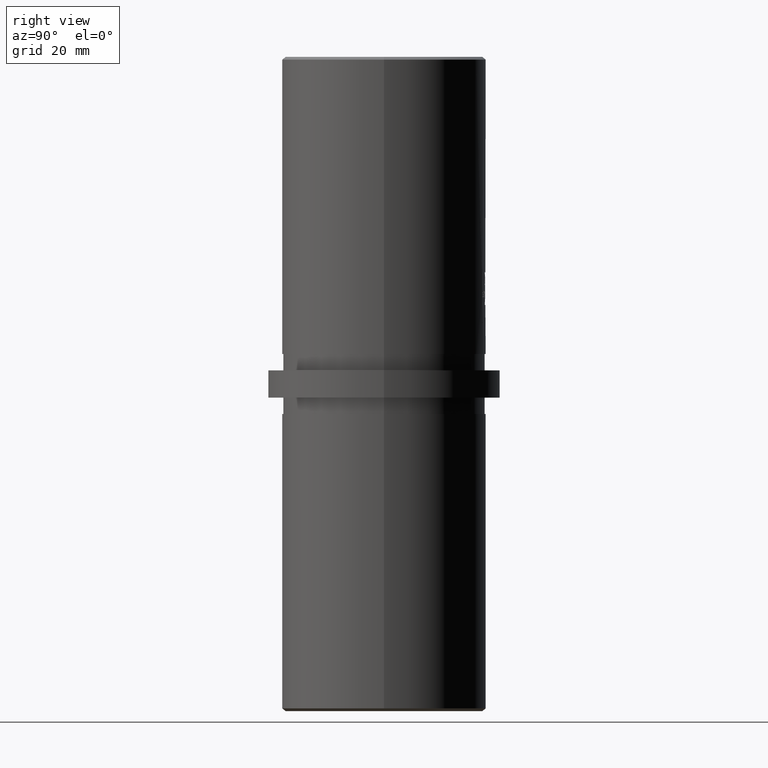
[diagram: clean part render]
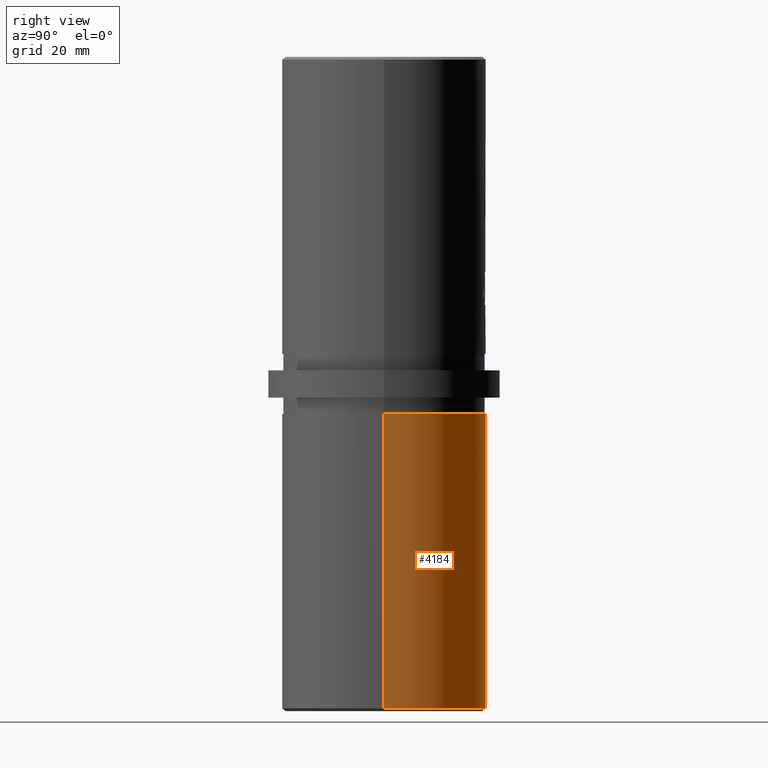
[diagram: same view with one face highlighted and labeled with its STEP entity id]
A machine part, right view. The second image highlights one B-rep face of the part: STEP entity #4184.
In plain terms, the highlighted cylindrical surface (partial cylindrical patch) has radius 18.65 mm, axis along (-0, -0, 1).
Its self-contained STEP definition (entity closure, byte-faithful):
#2571 = VERTEX_POINT ( 'NONE', #10767 ) ;
#2665 = EDGE_CURVE ( 'NONE', #2571, #21585, #22163, .T. ) ;
#3487 = FACE_OUTER_BOUND ( 'NONE', #4431, .T. ) ;
#3500 = VERTEX_POINT ( 'NONE', #7982 ) ;
#4184 = ADVANCED_FACE ( 'NONE', ( #3487 ), #16981, .T. ) ;
#4431 = EDGE_LOOP ( 'NONE', ( #13876, #11464, #5688, #14633 ) ) ;
#4633 = DIRECTION ( 'NONE',  ( -0.0000000000000000000, -0.0000000000000000000, 1.000000000000000000 ) ) ;
#4956 = CARTESIAN_POINT ( 'NONE',  ( 0.0000000000000000000, 0.0000000000000000000, -5.500000000000000000 ) ) ;
#5556 = CARTESIAN_POINT ( 'NONE',  ( 18.65000000000000200, -2.283966280409814200E-015, -60.00000000000000000 ) ) ;
#5688 = ORIENTED_EDGE ( 'NONE', *, *, #14640, .T. ) ;
#6146 = AXIS2_PLACEMENT_3D ( 'NONE', #11438, #7792, #22485 ) ;
#7170 = VERTEX_POINT ( 'NONE', #18103 ) ;
#7275 = DIRECTION ( 'NONE',  ( -0.0000000000000000000, -0.0000000000000000000, 1.000000000000000000 ) ) ;
#7792 = DIRECTION ( 'NONE',  ( -0.0000000000000000000, -0.0000000000000000000, 1.000000000000000000 ) ) ;
#7982 = CARTESIAN_POINT ( 'NONE',  ( -18.65000000000000200, 0.0000000000000000000, -59.49999999999995700 ) ) ;
#8066 = AXIS2_PLACEMENT_3D ( 'NONE', #16377, #23413, #14511 ) ;
#8164 = AXIS2_PLACEMENT_3D ( 'NONE', #4956, #4633, #12088 ) ;
#10249 = DIRECTION ( 'NONE',  ( -0.0000000000000000000, -0.0000000000000000000, 1.000000000000000000 ) ) ;
#10767 = CARTESIAN_POINT ( 'NONE',  ( 18.65000000000000200, -2.283966280409814200E-015, -59.49999999999995700 ) ) ;
#11401 = VECTOR ( 'NONE', #10249, 1000.000000000000000 ) ;
#11438 = CARTESIAN_POINT ( 'NONE',  ( 0.0000000000000000000, 0.0000000000000000000, -59.49999999999995700 ) ) ;
#11464 = ORIENTED_EDGE ( 'NONE', *, *, #17846, .T. ) ;
#12088 = DIRECTION ( 'NONE',  ( 1.000000000000000000, 0.0000000000000000000, 0.0000000000000000000 ) ) ;
#12946 = CARTESIAN_POINT ( 'NONE',  ( 18.65000000000000200, -2.283966280409814200E-015, -5.500000000000000000 ) ) ;
#13876 = ORIENTED_EDGE ( 'NONE', *, *, #2665, .F. ) ;
#14511 = DIRECTION ( 'NONE',  ( -1.000000000000000000, 0.0000000000000000000, 0.0000000000000000000 ) ) ;
#14633 = ORIENTED_EDGE ( 'NONE', *, *, #20905, .F. ) ;
#14640 = EDGE_CURVE ( 'NONE', #3500, #7170, #19124, .T. ) ;
#15022 = CIRCLE ( 'NONE', #8164, 18.65000000000000200 ) ;
#15773 = CIRCLE ( 'NONE', #6146, 18.65000000000000200 ) ;
#16377 = CARTESIAN_POINT ( 'NONE',  ( 0.0000000000000000000, 0.0000000000000000000, -60.00000000000000000 ) ) ;
#16981 = CYLINDRICAL_SURFACE ( 'NONE', #8066, 18.65000000000000200 ) ;
#17846 = EDGE_CURVE ( 'NONE', #2571, #3500, #15773, .T. ) ;
#17886 = CARTESIAN_POINT ( 'NONE',  ( -18.65000000000000200, 0.0000000000000000000, -60.00000000000000000 ) ) ;
#18103 = CARTESIAN_POINT ( 'NONE',  ( -18.65000000000000200, 0.0000000000000000000, -5.500000000000000000 ) ) ;
#19124 = LINE ( 'NONE', #17886, #11401 ) ;
#20905 = EDGE_CURVE ( 'NONE', #21585, #7170, #15022, .T. ) ;
#21585 = VERTEX_POINT ( 'NONE', #12946 ) ;
#22163 = LINE ( 'NONE', #5556, #23605 ) ;
#22485 = DIRECTION ( 'NONE',  ( -1.000000000000000000, 0.0000000000000000000, 0.0000000000000000000 ) ) ;
#23413 = DIRECTION ( 'NONE',  ( -0.0000000000000000000, -0.0000000000000000000, 1.000000000000000000 ) ) ;
#23605 = VECTOR ( 'NONE', #7275, 1000.000000000000000 ) ;